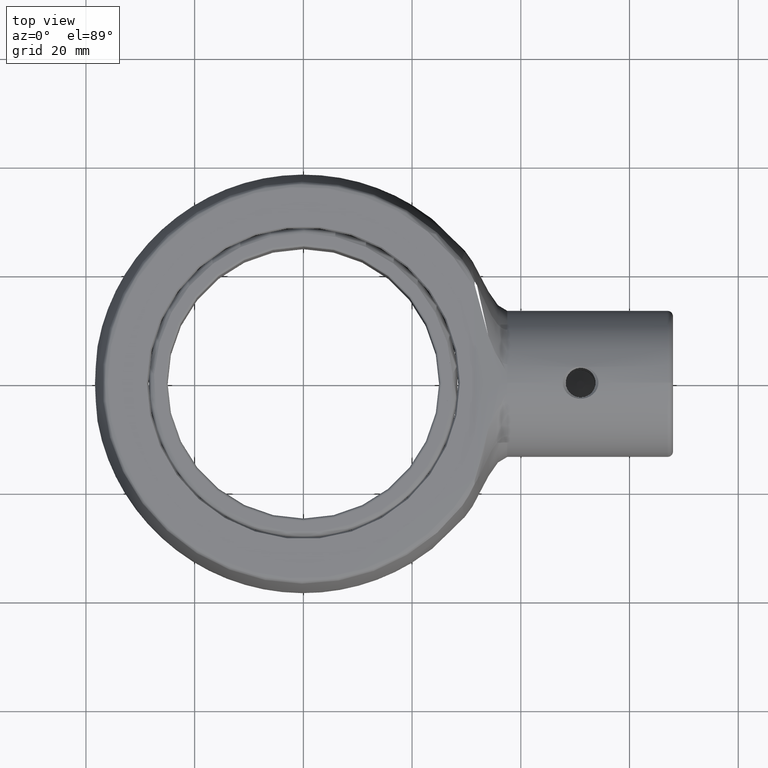
[diagram: clean part render]
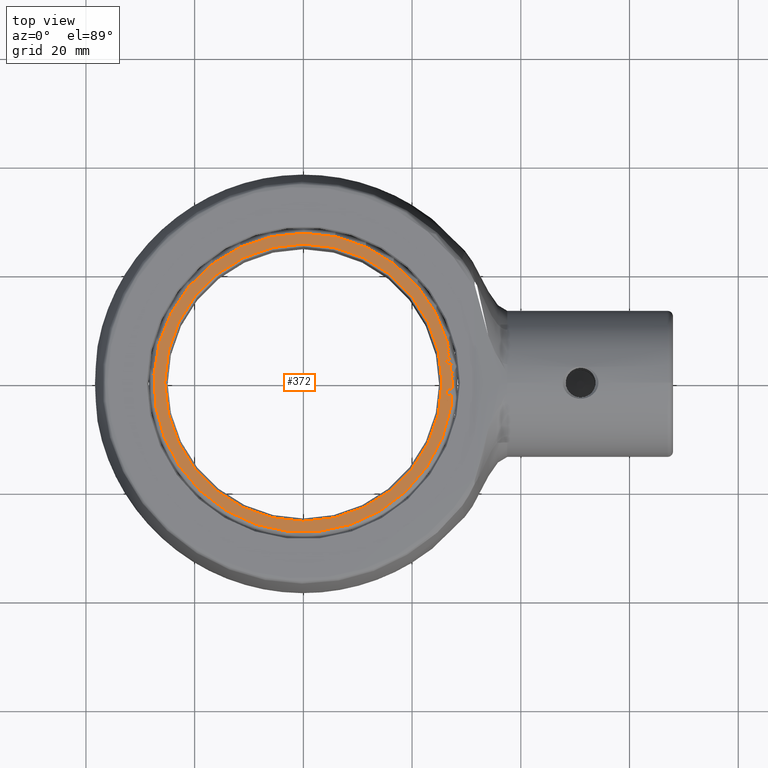
[diagram: same view with one face highlighted and labeled with its STEP entity id]
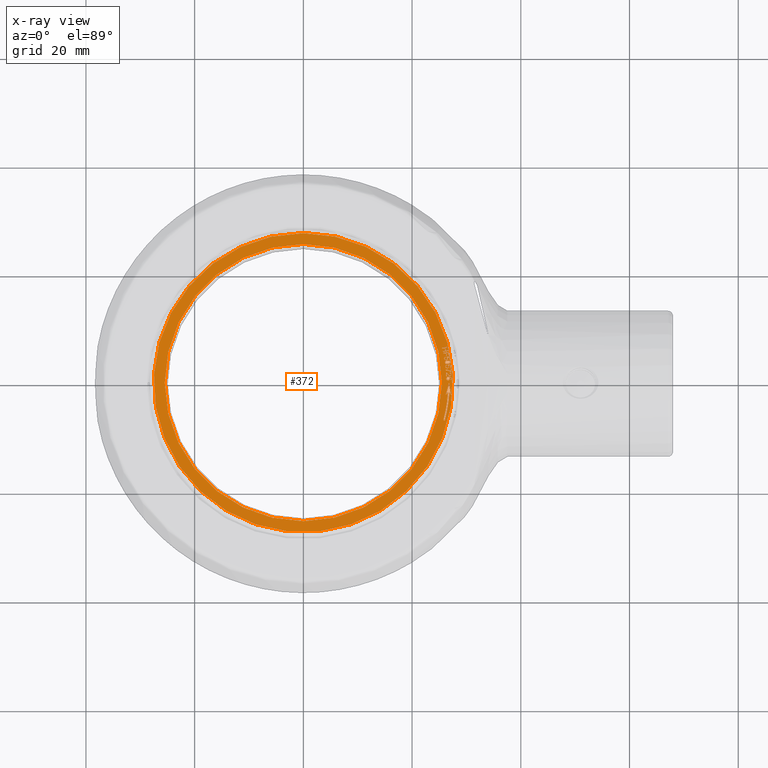
[diagram: x-ray of the same camera — body ghosted, the highlighted face saturated]
A machine part, top view. The second image highlights one B-rep face of the part: STEP entity #372.
The next image is the same camera in x-ray: the body ghosted, the highlighted face saturated — about 0% of this face is hidden behind the body in this view.
In plain terms, the highlighted planar face has unit normal (0, -0, -1).
Its self-contained STEP definition (entity closure, byte-faithful):
#372 = ADVANCED_FACE( '', ( #772, #773, #774, #775, #776, #777, #778, #779, #780, #781, #782 ), #783, .F. );
#772 = FACE_BOUND( '', #1344, .T. );
#773 = FACE_BOUND( '', #1345, .T. );
#774 = FACE_BOUND( '', #1346, .T. );
#775 = FACE_BOUND( '', #1347, .T. );
#776 = FACE_OUTER_BOUND( '', #1348, .T. );
#777 = FACE_BOUND( '', #1349, .T. );
#778 = FACE_BOUND( '', #1350, .T. );
#779 = FACE_BOUND( '', #1351, .T. );
#780 = FACE_BOUND( '', #1352, .T. );
#781 = FACE_BOUND( '', #1353, .T. );
#782 = FACE_BOUND( '', #1354, .T. );
#783 = PLANE( '', #1355 );
#1344 = EDGE_LOOP( '', ( #3769, #3770, #3771 ) );
#1345 = EDGE_LOOP( '', ( #3772, #3773, #3774, #3775, #3776, #3777, #3778 ) );
#1346 = EDGE_LOOP( '', ( #3779 ) );
#1347 = EDGE_LOOP( '', ( #3780, #3781, #3782, #3783, #3784, #3785, #3786, #3787, #3788, #3789 ) );
#1348 = EDGE_LOOP( '', ( #3790 ) );
#1349 = EDGE_LOOP( '', ( #3791 ) );
#1350 = EDGE_LOOP( '', ( #3792, #3793, #3794, #3795, #3796, #3797, #3798, #3799, #3800, #3801, #3802, #3803 ) );
#1351 = EDGE_LOOP( '', ( #3804, #3805, #3806, #3807, #3808, #3809, #3810, #3811, #3812 ) );
#1352 = EDGE_LOOP( '', ( #3813, #3814, #3815, #3816, #3817, #3818, #3819, #3820, #3821 ) );
#1353 = EDGE_LOOP( '', ( #3822, #3823, #3824, #3825, #3826, #3827 ) );
#1354 = EDGE_LOOP( '', ( #3828, #3829, #3830, #3831, #3832, #3833, #3834 ) );
#1355 = AXIS2_PLACEMENT_3D( '', #3835, #3836, #3837 );
#3769 = ORIENTED_EDGE( '', *, *, #4694, .T. );
#3770 = ORIENTED_EDGE( '', *, *, #4695, .T. );
#3771 = ORIENTED_EDGE( '', *, *, #4660, .T. );
#3772 = ORIENTED_EDGE( '', *, *, #4474, .T. );
#3773 = ORIENTED_EDGE( '', *, *, #4696, .T. );
#3774 = ORIENTED_EDGE( '', *, *, #4697, .T. );
#3775 = ORIENTED_EDGE( '', *, *, #4698, .T. );
#3776 = ORIENTED_EDGE( '', *, *, #4699, .T. );
#3777 = ORIENTED_EDGE( '', *, *, #4649, .T. );
#3778 = ORIENTED_EDGE( '', *, *, #4700, .T. );
#3779 = ORIENTED_EDGE( '', *, *, #4531, .T. );
#3780 = ORIENTED_EDGE( '', *, *, #4701, .T. );
#3781 = ORIENTED_EDGE( '', *, *, #4702, .T. );
#3782 = ORIENTED_EDGE( '', *, *, #4703, .T. );
#3783 = ORIENTED_EDGE( '', *, *, #4690, .T. );
#3784 = ORIENTED_EDGE( '', *, *, #4704, .T. );
#3785 = ORIENTED_EDGE( '', *, *, #4499, .T. );
#3786 = ORIENTED_EDGE( '', *, *, #4625, .T. );
#3787 = ORIENTED_EDGE( '', *, *, #4705, .T. );
#3788 = ORIENTED_EDGE( '', *, *, #4562, .T. );
#3789 = ORIENTED_EDGE( '', *, *, #4479, .T. );
#3790 = ORIENTED_EDGE( '', *, *, #4673, .T. );
#3791 = ORIENTED_EDGE( '', *, *, #4517, .T. );
#3792 = ORIENTED_EDGE( '', *, *, #4596, .T. );
#3793 = ORIENTED_EDGE( '', *, *, #4670, .T. );
#3794 = ORIENTED_EDGE( '', *, *, #4706, .T. );
#3795 = ORIENTED_EDGE( '', *, *, #4707, .T. );
#3796 = ORIENTED_EDGE( '', *, *, #4708, .T. );
#3797 = ORIENTED_EDGE( '', *, *, #4709, .T. );
#3798 = ORIENTED_EDGE( '', *, *, #4537, .T. );
#3799 = ORIENTED_EDGE( '', *, *, #4710, .T. );
#3800 = ORIENTED_EDGE( '', *, *, #4599, .T. );
#3801 = ORIENTED_EDGE( '', *, *, #4711, .T. );
#3802 = ORIENTED_EDGE( '', *, *, #4464, .T. );
#3803 = ORIENTED_EDGE( '', *, *, #4459, .T. );
#3804 = ORIENTED_EDGE( '', *, *, #4712, .T. );
#3805 = ORIENTED_EDGE( '', *, *, #4713, .T. );
#3806 = ORIENTED_EDGE( '', *, *, #4714, .T. );
#3807 = ORIENTED_EDGE( '', *, *, #4715, .T. );
#3808 = ORIENTED_EDGE( '', *, *, #4506, .T. );
#3809 = ORIENTED_EDGE( '', *, *, #4716, .T. );
#3810 = ORIENTED_EDGE( '', *, *, #4636, .T. );
#3811 = ORIENTED_EDGE( '', *, *, #4533, .T. );
#3812 = ORIENTED_EDGE( '', *, *, #4484, .T. );
#3813 = ORIENTED_EDGE( '', *, *, #4682, .T. );
#3814 = ORIENTED_EDGE( '', *, *, #4717, .T. );
#3815 = ORIENTED_EDGE( '', *, *, #4592, .T. );
#3816 = ORIENTED_EDGE( '', *, *, #4569, .T. );
#3817 = ORIENTED_EDGE( '', *, *, #4656, .T. );
#3818 = ORIENTED_EDGE( '', *, *, #4718, .T. );
#3819 = ORIENTED_EDGE( '', *, *, #4449, .T. );
#3820 = ORIENTED_EDGE( '', *, *, #4565, .T. );
#3821 = ORIENTED_EDGE( '', *, *, #4719, .T. );
#3822 = ORIENTED_EDGE( '', *, *, #4444, .T. );
#3823 = ORIENTED_EDGE( '', *, *, #4606, .T. );
#3824 = ORIENTED_EDGE( '', *, *, #4557, .T. );
#3825 = ORIENTED_EDGE( '', *, *, #4633, .T. );
#3826 = ORIENTED_EDGE( '', *, *, #4720, .T. );
#3827 = ORIENTED_EDGE( '', *, *, #4721, .T. );
#3828 = ORIENTED_EDGE( '', *, *, #4608, .T. );
#3829 = ORIENTED_EDGE( '', *, *, #4687, .T. );
#3830 = ORIENTED_EDGE( '', *, *, #4722, .T. );
#3831 = ORIENTED_EDGE( '', *, *, #4620, .T. );
#3832 = ORIENTED_EDGE( '', *, *, #4723, .T. );
#3833 = ORIENTED_EDGE( '', *, *, #4667, .T. );
#3834 = ORIENTED_EDGE( '', *, *, #4454, .T. );
#3835 = CARTESIAN_POINT( '', ( -25.0000000000000, 0.000000000000000, 13.0000000000000 ) );
#3836 = DIRECTION( '', ( 0.000000000000000, 0.000000000000000, -1.00000000000000 ) );
#3837 = DIRECTION( '', ( -1.00000000000000, 0.000000000000000, 0.000000000000000 ) );
#4444 = EDGE_CURVE( '', #4867, #4868, #4869, .T. );
#4449 = EDGE_CURVE( '', #4876, #4877, #4878, .T. );
#4454 = EDGE_CURVE( '', #4885, #4886, #4887, .T. );
#4459 = EDGE_CURVE( '', #4894, #4895, #4896, .T. );
#4464 = EDGE_CURVE( '', #4903, #4894, #4904, .T. );
#4474 = EDGE_CURVE( '', #4919, #4920, #4921, .T. );
#4479 = EDGE_CURVE( '', #4928, #4929, #4930, .T. );
#4484 = EDGE_CURVE( '', #4937, #4938, #4939, .T. );
#4499 = EDGE_CURVE( '', #4964, #4965, #4966, .T. );
#4506 = EDGE_CURVE( '', #4975, #4976, #4977, .T. );
#4517 = EDGE_CURVE( '', #4994, #4994, #4995, .T. );
#4531 = EDGE_CURVE( '', #5019, #5019, #5020, .T. );
#4533 = EDGE_CURVE( '', #5022, #4937, #5023, .T. );
#4537 = EDGE_CURVE( '', #5028, #5029, #5030, .T. );
#4557 = EDGE_CURVE( '', #5058, #5059, #5060, .T. );
#4562 = EDGE_CURVE( '', #5067, #4928, #5068, .T. );
#4565 = EDGE_CURVE( '', #4877, #5071, #5072, .T. );
#4569 = EDGE_CURVE( '', #5077, #5078, #5079, .T. );
#4592 = EDGE_CURVE( '', #5115, #5077, #5116, .T. );
#4596 = EDGE_CURVE( '', #4895, #5121, #5122, .T. );
#4599 = EDGE_CURVE( '', #5125, #5126, #5127, .T. );
#4606 = EDGE_CURVE( '', #4868, #5058, #5135, .T. );
#4608 = EDGE_CURVE( '', #4886, #5137, #5138, .T. );
#4620 = EDGE_CURVE( '', #5156, #5157, #5158, .T. );
#4625 = EDGE_CURVE( '', #4965, #5165, #5166, .T. );
#4633 = EDGE_CURVE( '', #5059, #5176, #5177, .T. );
#4636 = EDGE_CURVE( '', #5180, #5022, #5181, .T. );
#4649 = EDGE_CURVE( '', #5199, #5200, #5201, .T. );
#4656 = EDGE_CURVE( '', #5078, #5211, #5212, .T. );
#4660 = EDGE_CURVE( '', #5217, #5218, #5219, .T. );
#4667 = EDGE_CURVE( '', #5229, #4885, #5230, .T. );
#4670 = EDGE_CURVE( '', #5121, #5233, #5234, .T. );
#4673 = EDGE_CURVE( '', #5237, #5237, #5238, .F. );
#4682 = EDGE_CURVE( '', #5252, #5253, #5254, .T. );
#4687 = EDGE_CURVE( '', #5137, #5261, #5262, .T. );
#4690 = EDGE_CURVE( '', #5265, #5266, #5267, .T. );
#4694 = EDGE_CURVE( '', #5218, #5271, #5272, .T. );
#4695 = EDGE_CURVE( '', #5271, #5217, #5273, .T. );
#4696 = EDGE_CURVE( '', #4920, #5274, #5275, .T. );
#4697 = EDGE_CURVE( '', #5274, #5276, #5277, .T. );
#4698 = EDGE_CURVE( '', #5276, #5278, #5279, .T. );
#4699 = EDGE_CURVE( '', #5278, #5199, #5280, .T. );
#4700 = EDGE_CURVE( '', #5200, #4919, #5281, .T. );
#4701 = EDGE_CURVE( '', #4929, #5282, #5283, .T. );
#4702 = EDGE_CURVE( '', #5282, #5284, #5285, .T. );
#4703 = EDGE_CURVE( '', #5284, #5265, #5286, .T. );
#4704 = EDGE_CURVE( '', #5266, #4964, #5287, .T. );
#4705 = EDGE_CURVE( '', #5165, #5067, #5288, .T. );
#4706 = EDGE_CURVE( '', #5233, #5289, #5290, .T. );
#4707 = EDGE_CURVE( '', #5289, #5291, #5292, .T. );
#4708 = EDGE_CURVE( '', #5291, #5293, #5294, .T. );
#4709 = EDGE_CURVE( '', #5293, #5028, #5295, .T. );
#4710 = EDGE_CURVE( '', #5029, #5125, #5296, .T. );
#4711 = EDGE_CURVE( '', #5126, #4903, #5297, .T. );
#4712 = EDGE_CURVE( '', #4938, #5298, #5299, .T. );
#4713 = EDGE_CURVE( '', #5298, #5300, #5301, .T. );
#4714 = EDGE_CURVE( '', #5300, #5302, #5303, .T. );
#4715 = EDGE_CURVE( '', #5302, #4975, #5304, .T. );
#4716 = EDGE_CURVE( '', #4976, #5180, #5305, .T. );
#4717 = EDGE_CURVE( '', #5253, #5115, #5306, .T. );
#4718 = EDGE_CURVE( '', #5211, #4876, #5307, .T. );
#4719 = EDGE_CURVE( '', #5071, #5252, #5308, .T. );
#4720 = EDGE_CURVE( '', #5176, #5309, #5310, .T. );
#4721 = EDGE_CURVE( '', #5309, #4867, #5311, .T. );
#4722 = EDGE_CURVE( '', #5261, #5156, #5312, .T. );
#4723 = EDGE_CURVE( '', #5157, #5229, #5313, .T. );
#4867 = VERTEX_POINT( '', #5606 );
#4868 = VERTEX_POINT( '', #5607 );
#4869 = B_SPLINE_CURVE_WITH_KNOTS( '', 3, ( #5608, #5609, #5610, #5611 ), .UNSPECIFIED., .F., .F., ( 4, 4 ), ( 0.895332231521097, 1.00000000000000 ), .UNSPECIFIED. );
#4876 = VERTEX_POINT( '', #5623 );
#4877 = VERTEX_POINT( '', #5624 );
#4878 = B_SPLINE_CURVE_WITH_KNOTS( '', 3, ( #5625, #5626, #5627, #5628 ), .UNSPECIFIED., .F., .F., ( 4, 4 ), ( 0.497062301495594, 0.520456225598228 ), .UNSPECIFIED. );
#4885 = VERTEX_POINT( '', #5640 );
#4886 = VERTEX_POINT( '', #5641 );
#4887 = LINE( '', #5642, #5643 );
#4894 = VERTEX_POINT( '', #5653 );
#4895 = VERTEX_POINT( '', #5654 );
#4896 = B_SPLINE_CURVE_WITH_KNOTS( '', 1, ( #5655, #5656 ), .UNSPECIFIED., .F., .F., ( 2, 2 ), ( 0.886658354114713, 0.975062344139651 ), .UNSPECIFIED. );
#4903 = VERTEX_POINT( '', #5666 );
#4904 = B_SPLINE_CURVE_WITH_KNOTS( '', 1, ( #5667, #5668 ), .UNSPECIFIED., .F., .F., ( 2, 2 ), ( 0.789276807980050, 0.886658354114713 ), .UNSPECIFIED. );
#4919 = VERTEX_POINT( '', #5685 );
#4920 = VERTEX_POINT( '', #5686 );
#4921 = B_SPLINE_CURVE_WITH_KNOTS( '', 3, ( #5687, #5688, #5689, #5690 ), .UNSPECIFIED., .F., .F., ( 4, 4 ), ( 0.856757478389091, 1.00000000000000 ), .UNSPECIFIED. );
#4928 = VERTEX_POINT( '', #5702 );
#4929 = VERTEX_POINT( '', #5703 );
#4930 = B_SPLINE_CURVE_WITH_KNOTS( '', 1, ( #5704, #5705 ), .UNSPECIFIED., .F., .F., ( 2, 2 ), ( 0.863340563991323, 0.969011465757670 ), .UNSPECIFIED. );
#4937 = VERTEX_POINT( '', #5715 );
#4938 = VERTEX_POINT( '', #5716 );
#4939 = B_SPLINE_CURVE_WITH_KNOTS( '', 3, ( #5717, #5718, #5719, #5720 ), .UNSPECIFIED., .F., .F., ( 4, 4 ), ( 0.600075319561169, 0.654687335381319 ), .UNSPECIFIED. );
#4964 = VERTEX_POINT( '', #5759 );
#4965 = VERTEX_POINT( '', #5760 );
#4966 = B_SPLINE_CURVE_WITH_KNOTS( '', 1, ( #5761, #5762 ), .UNSPECIFIED., .F., .F., ( 2, 2 ), ( 0.544623489308956, 0.616516888751162 ), .UNSPECIFIED. );
#4975 = VERTEX_POINT( '', #5773 );
#4976 = VERTEX_POINT( '', #5774 );
#4977 = B_SPLINE_CURVE_WITH_KNOTS( '', 3, ( #5775, #5776, #5777, #5778 ), .UNSPECIFIED., .F., .F., ( 4, 4 ), ( 0.293581254948899, 0.398169804152642 ), .UNSPECIFIED. );
#4994 = VERTEX_POINT( '', #5861 );
#4995 = CIRCLE( '', #5862, 25.5000000000000 );
#5019 = VERTEX_POINT( '', #5928 );
#5020 = B_SPLINE_CURVE_WITH_KNOTS( '', 3, ( #5929, #5930, #5931, #5932, #5933, #5934, #5935, #5936, #5937, #5938, #5939, #5940, #5941, #5942, #5943, #5944, #5945, #5946, #5947, #5948, #5949, #5950, #5951, #5952, #5953, #5954, #5955, #5956, #5957, #5958, #5959, #5960, #5961 ), .UNSPECIFIED., .T., .F., ( 4, 3, 3, 2, 3, 2, 3, 2, 3, 3, 2, 3, 4 ), ( 0.000000000000000, 0.105584299982583, 0.179172153576167, 0.250616225579081, 0.303707691929869, 0.358405596739849, 0.413103501549828, 0.501245650391660, 0.605359866473287, 0.678761217549952, 0.750407329936788, 0.844198604334102, 1.00000000000000 ), .UNSPECIFIED. );
#5022 = VERTEX_POINT( '', #5963 );
#5023 = B_SPLINE_CURVE_WITH_KNOTS( '', 3, ( #5964, #5965, #5966, #5967 ), .UNSPECIFIED., .F., .F., ( 4, 4 ), ( 0.520456225598228, 0.600075319561169 ), .UNSPECIFIED. );
#5028 = VERTEX_POINT( '', #5976 );
#5029 = VERTEX_POINT( '', #5977 );
#5030 = B_SPLINE_CURVE_WITH_KNOTS( '', 1, ( #5978, #5979 ), .UNSPECIFIED., .F., .F., ( 2, 2 ), ( 0.463466334164588, 0.488403990024938 ), .UNSPECIFIED. );
#5058 = VERTEX_POINT( '', #6081 );
#5059 = VERTEX_POINT( '', #6082 );
#5060 = B_SPLINE_CURVE_WITH_KNOTS( '', 3, ( #6083, #6084, #6085, #6086 ), .UNSPECIFIED., .F., .F., ( 4, 4 ), ( 0.0252450715301420, 0.166362184858745 ), .UNSPECIFIED. );
#5067 = VERTEX_POINT( '', #6098 );
#5068 = B_SPLINE_CURVE_WITH_KNOTS( '', 1, ( #6099, #6100 ), .UNSPECIFIED., .F., .F., ( 2, 2 ), ( 0.753796095444685, 0.863340563991323 ), .UNSPECIFIED. );
#5071 = VERTEX_POINT( '', #6104 );
#5072 = B_SPLINE_CURVE_WITH_KNOTS( '', 3, ( #6105, #6106, #6107, #6108 ), .UNSPECIFIED., .F., .F., ( 4, 4 ), ( 0.520456225598228, 0.600075319561169 ), .UNSPECIFIED. );
#5077 = VERTEX_POINT( '', #6117 );
#5078 = VERTEX_POINT( '', #6118 );
#5079 = B_SPLINE_CURVE_WITH_KNOTS( '', 3, ( #6119, #6120, #6121, #6122 ), .UNSPECIFIED., .F., .F., ( 4, 4 ), ( 0.270365868179201, 0.293581254948899 ), .UNSPECIFIED. );
#5115 = VERTEX_POINT( '', #6324 );
#5116 = B_SPLINE_CURVE_WITH_KNOTS( '', 3, ( #6325, #6326, #6327, #6328, #6329, #6330, #6331, #6332, #6333, #6334, #6335, #6336, #6337, #6338, #6339, #6340, #6341, #6342, #6343, #6344, #6345 ), .UNSPECIFIED., .F., .F., ( 4, 3, 2, 3, 2, 2, 2, 3, 4 ), ( 0.0259861195176177, 0.0573918054660057, 0.0853913150558070, 0.118617399769038, 0.156217962131492, 0.191786061663543, 0.227354161195595, 0.249584223403127, 0.270365868179201 ), .UNSPECIFIED. );
#5121 = VERTEX_POINT( '', #6371 );
#5122 = B_SPLINE_CURVE_WITH_KNOTS( '', 1, ( #6372, #6373 ), .UNSPECIFIED., .F., .F., ( 2, 2 ), ( 0.975062344139651, 1.00000000000000 ), .UNSPECIFIED. );
#5125 = VERTEX_POINT( '', #6377 );
#5126 = VERTEX_POINT( '', #6378 );
#5127 = B_SPLINE_CURVE_WITH_KNOTS( '', 1, ( #6379, #6380 ), .UNSPECIFIED., .F., .F., ( 2, 2 ), ( 0.675935162094763, 0.700872817955112 ), .UNSPECIFIED. );
#5135 = B_SPLINE_CURVE_WITH_KNOTS( '', 3, ( #6392, #6393, #6394, #6395 ), .UNSPECIFIED., .F., .F., ( 4, 4 ), ( 0.000000000000000, 0.0252450715301420 ), .UNSPECIFIED. );
#5137 = VERTEX_POINT( '', #6397 );
#5138 = LINE( '', #6398, #6399 );
#5156 = VERTEX_POINT( '', #6627 );
#5157 = VERTEX_POINT( '', #6628 );
#5158 = CIRCLE( '', #6629, 26.9500000000000 );
#5165 = VERTEX_POINT( '', #6638 );
#5166 = B_SPLINE_CURVE_WITH_KNOTS( '', 1, ( #6639, #6640 ), .UNSPECIFIED., .F., .F., ( 2, 2 ), ( 0.616516888751162, 0.726061357297800 ), .UNSPECIFIED. );
#5176 = VERTEX_POINT( '', #6695 );
#5177 = B_SPLINE_CURVE_WITH_KNOTS( '', 3, ( #6696, #6697, #6698, #6699, #6700, #6701, #6702, #6703, #6704, #6705, #6706, #6707, #6708, #6709, #6710, #6711, #6712, #6713, #6714, #6715, #6716, #6717, #6718, #6719 ), .UNSPECIFIED., .F., .F., ( 4, 3, 2, 3, 2, 2, 3, 2, 3, 4 ), ( 0.166362184858745, 0.184903631745613, 0.225161866743363, 0.265420101741112, 0.307855039222270, 0.350289976703427, 0.394543554362349, 0.426310847707327, 0.459573072503834, 0.493858054008600 ), .UNSPECIFIED. );
#5180 = VERTEX_POINT( '', #6723 );
#5181 = B_SPLINE_CURVE_WITH_KNOTS( '', 3, ( #6724, #6725, #6726, #6727 ), .UNSPECIFIED., .F., .F., ( 4, 4 ), ( 0.497062301495594, 0.520456225598228 ), .UNSPECIFIED. );
#5199 = VERTEX_POINT( '', #6750 );
#5200 = VERTEX_POINT( '', #6751 );
#5201 = B_SPLINE_CURVE_WITH_KNOTS( '', 3, ( #6752, #6753, #6754, #6755 ), .UNSPECIFIED., .F., .F., ( 4, 4 ), ( 0.541040644475886, 0.578019012826529 ), .UNSPECIFIED. );
#5211 = VERTEX_POINT( '', #6770 );
#5212 = B_SPLINE_CURVE_WITH_KNOTS( '', 3, ( #6771, #6772, #6773, #6774 ), .UNSPECIFIED., .F., .F., ( 4, 4 ), ( 0.293581254948899, 0.398169804152642 ), .UNSPECIFIED. );
#5217 = VERTEX_POINT( '', #6783 );
#5218 = VERTEX_POINT( '', #6784 );
#5219 = B_SPLINE_CURVE_WITH_KNOTS( '', 3, ( #6785, #6786, #6787, #6788, #6789, #6790, #6791, #6792, #6793, #6794, #6795, #6796, #6797, #6798, #6799 ), .UNSPECIFIED., .F., .F., ( 4, 3, 2, 3, 3, 4 ), ( 0.0307166801766741, 0.0596365661616242, 0.0940144304891724, 0.121799279740205, 0.160596748296280, 0.219341809336946 ), .UNSPECIFIED. );
#5229 = VERTEX_POINT( '', #6846 );
#5230 = CIRCLE( '', #6847, 26.6500000000000 );
#5233 = VERTEX_POINT( '', #6851 );
#5234 = B_SPLINE_CURVE_WITH_KNOTS( '', 1, ( #6852, #6853 ), .UNSPECIFIED., .F., .F., ( 2, 2 ), ( 0.000000000000000, 0.187531172069826 ), .UNSPECIFIED. );
#5237 = VERTEX_POINT( '', #6857 );
#5238 = CIRCLE( '', #6858, 27.5000000000000 );
#5252 = VERTEX_POINT( '', #6872 );
#5253 = VERTEX_POINT( '', #6873 );
#5254 = B_SPLINE_CURVE_WITH_KNOTS( '', 3, ( #6874, #6875, #6876, #6877, #6878, #6879, #6880, #6881, #6882, #6883, #6884, #6885, #6886, #6887, #6888, #6889, #6890, #6891 ), .UNSPECIFIED., .F., .F., ( 4, 2, 2, 2, 3, 2, 3, 4 ), ( 0.654687335381319, 0.693623970125626, 0.745146183777185, 0.796668397428743, 0.846028839878139, 0.905331265922144, 0.953916386054581, 1.00000000000000 ), .UNSPECIFIED. );
#5261 = VERTEX_POINT( '', #6917 );
#5262 = LINE( '', #6918, #6919 );
#5265 = VERTEX_POINT( '', #6923 );
#5266 = VERTEX_POINT( '', #6924 );
#5267 = B_SPLINE_CURVE_WITH_KNOTS( '', 1, ( #6925, #6926 ), .UNSPECIFIED., .F., .F., ( 2, 2 ), ( 0.390455531453362, 0.418190269600248 ), .UNSPECIFIED. );
#5271 = VERTEX_POINT( '', #6932 );
#5272 = B_SPLINE_CURVE_WITH_KNOTS( '', 3, ( #6933, #6934, #6935, #6936, #6937, #6938, #6939, #6940, #6941, #6942, #6943, #6944, #6945, #6946, #6947, #6948, #6949, #6950, #6951, #6952, #6953, #6954, #6955, #6956, #6957, #6958, #6959, #6960, #6961, #6962, #6963 ), .UNSPECIFIED., .F., .F., ( 4, 2, 2, 3, 2, 2, 2, 2, 2, 2, 3, 2, 3, 4 ), ( 0.219341809336946, 0.254140841877077, 0.288939874417208, 0.350086745880580, 0.423897313425340, 0.472416148035183, 0.520934982645025, 0.569453817254867, 0.651029440280206, 0.732605063305544, 0.823593258218421, 0.894686586120569, 0.947894800085070, 1.00000000000000 ), .UNSPECIFIED. );
#5273 = B_SPLINE_CURVE_WITH_KNOTS( '', 3, ( #6964, #6965, #6966, #6967 ), .UNSPECIFIED., .F., .F., ( 4, 4 ), ( 0.000000000000000, 0.0307166801766741 ), .UNSPECIFIED. );
#5274 = VERTEX_POINT( '', #6968 );
#5275 = B_SPLINE_CURVE_WITH_KNOTS( '', 3, ( #6969, #6970, #6971, #6972 ), .UNSPECIFIED., .F., .F., ( 4, 4 ), ( 0.000000000000000, 0.0348375154461314 ), .UNSPECIFIED. );
#5276 = VERTEX_POINT( '', #6973 );
#5277 = B_SPLINE_CURVE_WITH_KNOTS( '', 3, ( #6974, #6975, #6976, #6977 ), .UNSPECIFIED., .F., .F., ( 4, 4 ), ( 0.0348375154461314, 0.224205685999683 ), .UNSPECIFIED. );
#5278 = VERTEX_POINT( '', #6978 );
#5279 = B_SPLINE_CURVE_WITH_KNOTS( '', 3, ( #6979, #6980, #6981, #6982 ), .UNSPECIFIED., .F., .F., ( 4, 4 ), ( 0.224205685999683, 0.252426019740963 ), .UNSPECIFIED. );
#5280 = B_SPLINE_CURVE_WITH_KNOTS( '', 3, ( #6983, #6984, #6985, #6986, #6987, #6988, #6989, #6990, #6991 ), .UNSPECIFIED., .F., .F., ( 4, 2, 3, 4 ), ( 0.252426019740963, 0.355890498264741, 0.459354976788519, 0.541040644475886 ), .UNSPECIFIED. );
#5281 = B_SPLINE_CURVE_WITH_KNOTS( '', 3, ( #6992, #6993, #6994, #6995, #6996, #6997, #6998, #6999, #7000, #7001 ), .UNSPECIFIED., .F., .F., ( 4, 3, 3, 4 ), ( 0.578019012826529, 0.662618183941018, 0.764294560978321, 0.856757478389091 ), .UNSPECIFIED. );
#5282 = VERTEX_POINT( '', #7002 );
#5283 = B_SPLINE_CURVE_WITH_KNOTS( '', 1, ( #7003, #7004 ), .UNSPECIFIED., .F., .F., ( 2, 2 ), ( 0.969011465757670, 1.00000000000000 ), .UNSPECIFIED. );
#5284 = VERTEX_POINT( '', #7005 );
#5285 = B_SPLINE_CURVE_WITH_KNOTS( '', 1, ( #7006, #7007 ), .UNSPECIFIED., .F., .F., ( 2, 2 ), ( 0.000000000000000, 0.233033777502324 ), .UNSPECIFIED. );
#5286 = B_SPLINE_CURVE_WITH_KNOTS( '', 1, ( #7008, #7009 ), .UNSPECIFIED., .F., .F., ( 2, 2 ), ( 0.233033777502324, 0.390455531453362 ), .UNSPECIFIED. );
#5287 = B_SPLINE_CURVE_WITH_KNOTS( '', 1, ( #7010, #7011 ), .UNSPECIFIED., .F., .F., ( 2, 2 ), ( 0.418190269600248, 0.544623489308956 ), .UNSPECIFIED. );
#5288 = B_SPLINE_CURVE_WITH_KNOTS( '', 1, ( #7012, #7013 ), .UNSPECIFIED., .F., .F., ( 2, 2 ), ( 0.726061357297800, 0.753796095444685 ), .UNSPECIFIED. );
#5289 = VERTEX_POINT( '', #7014 );
#5290 = B_SPLINE_CURVE_WITH_KNOTS( '', 1, ( #7015, #7016 ), .UNSPECIFIED., .F., .F., ( 2, 2 ), ( 0.187531172069826, 0.212468827930174 ), .UNSPECIFIED. );
#5291 = VERTEX_POINT( '', #7017 );
#5292 = B_SPLINE_CURVE_WITH_KNOTS( '', 1, ( #7018, #7019 ), .UNSPECIFIED., .F., .F., ( 2, 2 ), ( 0.212468827930174, 0.289276807980050 ), .UNSPECIFIED. );
#5293 = VERTEX_POINT( '', #7020 );
#5294 = B_SPLINE_CURVE_WITH_KNOTS( '', 1, ( #7021, #7022 ), .UNSPECIFIED., .F., .F., ( 2, 2 ), ( 0.289276807980050, 0.386658354114713 ), .UNSPECIFIED. );
#5295 = B_SPLINE_CURVE_WITH_KNOTS( '', 1, ( #7023, #7024 ), .UNSPECIFIED., .F., .F., ( 2, 2 ), ( 0.386658354114713, 0.463466334164588 ), .UNSPECIFIED. );
#5296 = B_SPLINE_CURVE_WITH_KNOTS( '', 1, ( #7025, #7026 ), .UNSPECIFIED., .F., .F., ( 2, 2 ), ( 0.488403990024938, 0.675935162094763 ), .UNSPECIFIED. );
#5297 = B_SPLINE_CURVE_WITH_KNOTS( '', 1, ( #7027, #7028 ), .UNSPECIFIED., .F., .F., ( 2, 2 ), ( 0.700872817955112, 0.789276807980050 ), .UNSPECIFIED. );
#5298 = VERTEX_POINT( '', #7029 );
#5299 = B_SPLINE_CURVE_WITH_KNOTS( '', 3, ( #7030, #7031, #7032, #7033, #7034, #7035, #7036, #7037, #7038, #7039, #7040, #7041, #7042, #7043, #7044, #7045, #7046, #7047 ), .UNSPECIFIED., .F., .F., ( 4, 2, 2, 2, 3, 2, 3, 4 ), ( 0.654687335381319, 0.693623970125627, 0.745146183777186, 0.796668397428744, 0.846028839878139, 0.905331265922144, 0.953916386054581, 1.00000000000000 ), .UNSPECIFIED. );
#5300 = VERTEX_POINT( '', #7048 );
#5301 = B_SPLINE_CURVE_WITH_KNOTS( '', 3, ( #7049, #7050, #7051, #7052 ), .UNSPECIFIED., .F., .F., ( 4, 4 ), ( 0.000000000000000, 0.0259861195176179 ), .UNSPECIFIED. );
#5302 = VERTEX_POINT( '', #7053 );
#5303 = B_SPLINE_CURVE_WITH_KNOTS( '', 3, ( #7054, #7055, #7056, #7057, #7058, #7059, #7060, #7061, #7062, #7063, #7064, #7065, #7066, #7067, #7068, #7069, #7070, #7071, #7072, #7073, #7074 ), .UNSPECIFIED., .F., .F., ( 4, 3, 2, 3, 2, 2, 2, 3, 4 ), ( 0.0259861195176179, 0.0573918054660059, 0.0853913150558069, 0.118617399769038, 0.156217962131492, 0.191786061663544, 0.227354161195595, 0.249584223403127, 0.270365868179201 ), .UNSPECIFIED. );
#5304 = B_SPLINE_CURVE_WITH_KNOTS( '', 3, ( #7075, #7076, #7077, #7078 ), .UNSPECIFIED., .F., .F., ( 4, 4 ), ( 0.270365868179201, 0.293581254948899 ), .UNSPECIFIED. );
#5305 = B_SPLINE_CURVE_WITH_KNOTS( '', 3, ( #7079, #7080, #7081, #7082 ), .UNSPECIFIED., .F., .F., ( 4, 4 ), ( 0.398169804152642, 0.497062301495594 ), .UNSPECIFIED. );
#5306 = B_SPLINE_CURVE_WITH_KNOTS( '', 3, ( #7083, #7084, #7085, #7086 ), .UNSPECIFIED., .F., .F., ( 4, 4 ), ( 0.000000000000000, 0.0259861195176177 ), .UNSPECIFIED. );
#5307 = B_SPLINE_CURVE_WITH_KNOTS( '', 3, ( #7087, #7088, #7089, #7090 ), .UNSPECIFIED., .F., .F., ( 4, 4 ), ( 0.398169804152642, 0.497062301495594 ), .UNSPECIFIED. );
#5308 = B_SPLINE_CURVE_WITH_KNOTS( '', 3, ( #7091, #7092, #7093, #7094 ), .UNSPECIFIED., .F., .F., ( 4, 4 ), ( 0.600075319561169, 0.654687335381319 ), .UNSPECIFIED. );
#5309 = VERTEX_POINT( '', #7095 );
#5310 = B_SPLINE_CURVE_WITH_KNOTS( '', 3, ( #7096, #7097, #7098, #7099 ), .UNSPECIFIED., .F., .F., ( 4, 4 ), ( 0.493858054008600, 0.520784505165992 ), .UNSPECIFIED. );
#5311 = B_SPLINE_CURVE_WITH_KNOTS( '', 3, ( #7100, #7101, #7102, #7103, #7104, #7105, #7106, #7107, #7108, #7109, #7110, #7111, #7112, #7113, #7114, #7115, #7116, #7117, #7118, #7119, #7120, #7121, #7122, #7123, #7124 ), .UNSPECIFIED., .F., .F., ( 4, 3, 2, 2, 2, 3, 3, 3, 3, 4 ), ( 0.520784505165992, 0.572525152509544, 0.622707052193058, 0.673590796627390, 0.724474541061724, 0.750347631452063, 0.781672218211085, 0.836800492435688, 0.877303282954089, 0.895332231521097 ), .UNSPECIFIED. );
#5312 = LINE( '', #7125, #7126 );
#5313 = LINE( '', #7127, #7128 );
#5606 = CARTESIAN_POINT( '', ( -1.65993104008684, 26.3811130382995, 13.0000000000000 ) );
#5607 = CARTESIAN_POINT( '', ( -1.17917596254376, 26.4061965504486, 13.0000000000000 ) );
#5608 = CARTESIAN_POINT( '', ( -1.65993104008684, 26.3811130382995, 13.0000000000000 ) );
#5609 = CARTESIAN_POINT( '', ( -1.49967934757248, 26.3894742090158, 13.0000000000000 ) );
#5610 = CARTESIAN_POINT( '', ( -1.33942765505812, 26.3978353797322, 13.0000000000000 ) );
#5611 = CARTESIAN_POINT( '', ( -1.17917596254376, 26.4061965504486, 13.0000000000000 ) );
#5623 = CARTESIAN_POINT( '', ( -2.77153049655800, 27.1437398548645, 13.0000000000000 ) );
#5624 = CARTESIAN_POINT( '', ( -2.75916162733889, 27.0296005168469, 13.0000000000000 ) );
#5625 = CARTESIAN_POINT( '', ( -2.77153049655800, 27.1437398548645, 13.0000000000000 ) );
#5626 = CARTESIAN_POINT( '', ( -2.76740754015163, 27.1056934088585, 13.0000000000000 ) );
#5627 = CARTESIAN_POINT( '', ( -2.76328458374526, 27.0676469628527, 13.0000000000000 ) );
#5628 = CARTESIAN_POINT( '', ( -2.75916162733889, 27.0296005168469, 13.0000000000000 ) );
#5640 = CARTESIAN_POINT( '', ( 1.81630052198326, 26.5880340080616, 13.0000000000000 ) );
#5641 = CARTESIAN_POINT( '', ( 2.20008671066486, 26.2078159804581, 13.0000000000000 ) );
#5642 = CARTESIAN_POINT( '', ( 2.20008671066486, 26.2078159804581, 13.0000000000000 ) );
#5643 = VECTOR( '', #7947, 1000.00000000000 );
#5653 = CARTESIAN_POINT( '', ( -6.36845766688310, 26.0123942423139, 13.0000000000000 ) );
#5654 = CARTESIAN_POINT( '', ( -6.26459801785993, 25.5617148873721, 13.0000000000000 ) );
#5655 = CARTESIAN_POINT( '', ( -6.36845766688310, 26.0123942423139, 13.0000000000000 ) );
#5656 = CARTESIAN_POINT( '', ( -6.26459801785993, 25.5617148873722, 13.0000000000000 ) );
#5666 = CARTESIAN_POINT( '', ( -5.87201115600928, 26.1268009925073, 13.0000000000000 ) );
#5667 = CARTESIAN_POINT( '', ( -5.87201115600928, 26.1268009925073, 13.0000000000000 ) );
#5668 = CARTESIAN_POINT( '', ( -6.36845766688310, 26.0123942423139, 13.0000000000000 ) );
#5685 = CARTESIAN_POINT( '', ( -2.11811037036868, 27.0849393193259, 13.0000000000000 ) );
#5686 = CARTESIAN_POINT( '', ( -2.59667782257189, 27.0465544228215, 13.0000000000000 ) );
#5687 = CARTESIAN_POINT( '', ( -2.11811037036868, 27.0849393193259, 13.0000000000000 ) );
#5688 = CARTESIAN_POINT( '', ( -2.27763285443642, 27.0721443538244, 13.0000000000000 ) );
#5689 = CARTESIAN_POINT( '', ( -2.43715533850415, 27.0593493883230, 13.0000000000000 ) );
#5690 = CARTESIAN_POINT( '', ( -2.59667782257189, 27.0465544228215, 13.0000000000000 ) );
#5702 = CARTESIAN_POINT( '', ( -5.41660590941153, 26.2081962560182, 13.0000000000000 ) );
#5703 = CARTESIAN_POINT( '', ( -5.33125665015253, 25.7715807332481, 13.0000000000000 ) );
#5704 = CARTESIAN_POINT( '', ( -5.41660590941153, 26.2081962560182, 13.0000000000000 ) );
#5705 = CARTESIAN_POINT( '', ( -5.33125665015252, 25.7715807332482, 13.0000000000000 ) );
#5715 = CARTESIAN_POINT( '', ( -4.64830726416607, 26.7698741529558, 13.0000000000000 ) );
#5716 = CARTESIAN_POINT( '', ( -4.65693611106324, 26.5020002280987, 13.0000000000000 ) );
#5717 = CARTESIAN_POINT( '', ( -4.64830726416607, 26.7698741529558, 13.0000000000000 ) );
#5718 = CARTESIAN_POINT( '', ( -4.65118354646513, 26.6805828446700, 13.0000000000000 ) );
#5719 = CARTESIAN_POINT( '', ( -4.65405982876418, 26.5912915363844, 13.0000000000000 ) );
#5720 = CARTESIAN_POINT( '', ( -4.65693611106323, 26.5020002280987, 13.0000000000000 ) );
#5759 = CARTESIAN_POINT( '', ( -5.49707449255456, 26.6198440289525, 13.0000000000000 ) );
#5760 = CARTESIAN_POINT( '', ( -5.43900696132849, 26.3227918257775, 13.0000000000000 ) );
#5761 = CARTESIAN_POINT( '', ( -5.49707449255456, 26.6198440289525, 13.0000000000000 ) );
#5762 = CARTESIAN_POINT( '', ( -5.43900696132849, 26.3227918257775, 13.0000000000000 ) );
#5773 = CARTESIAN_POINT( '', ( -4.77274533380489, 26.3545983330630, 13.0000000000000 ) );
#5774 = CARTESIAN_POINT( '', ( -4.76034480619461, 26.8677252452949, 13.0000000000000 ) );
#5775 = CARTESIAN_POINT( '', ( -4.77274533380489, 26.3545983330630, 13.0000000000000 ) );
#5776 = CARTESIAN_POINT( '', ( -4.76861182460147, 26.5256406371402, 13.0000000000000 ) );
#5777 = CARTESIAN_POINT( '', ( -4.76447831539804, 26.6966829412176, 13.0000000000000 ) );
#5778 = CARTESIAN_POINT( '', ( -4.76034480619461, 26.8677252452949, 13.0000000000000 ) );
#5861 = CARTESIAN_POINT( '', ( -25.5000000000000, 0.000000000000000, 13.0000000000000 ) );
#5862 = AXIS2_PLACEMENT_3D( '', #7991, #7992, #7993 );
#5928 = CARTESIAN_POINT( '', ( -4.05879447155725, 26.4940807294139, 13.0000000000000 ) );
#5929 = CARTESIAN_POINT( '', ( -4.05879447155725, 26.4940807294139, 13.0000000000000 ) );
#5930 = CARTESIAN_POINT( '', ( -4.07443192684811, 26.6084767716451, 13.0000000000000 ) );
#5931 = CARTESIAN_POINT( '', ( -4.07543208134773, 26.7024886825733, 13.0000000000000 ) );
#5932 = CARTESIAN_POINT( '', ( -4.06114862973276, 26.7762048094035, 13.0000000000000 ) );
#5933 = CARTESIAN_POINT( '', ( -4.04690506398270, 26.8497150874268, 13.0000000000000 ) );
#5934 = CARTESIAN_POINT( '', ( -4.01994381399855, 26.9082466799378, 13.0000000000000 ) );
#5935 = CARTESIAN_POINT( '', ( -3.97862231581504, 26.9527396927772, 13.0000000000000 ) );
#5936 = CARTESIAN_POINT( '', ( -3.93758217578421, 26.9969297526151, 13.0000000000000 ) );
#5937 = CARTESIAN_POINT( '', ( -3.88096075494856, 27.0233688503281, 13.0000000000000 ) );
#5938 = CARTESIAN_POINT( '', ( -3.75816274351401, 27.0401548192844, 13.0000000000000 ) );
#5939 = CARTESIAN_POINT( '', ( -3.71086151027636, 27.0360865856683, 13.0000000000000 ) );
#5940 = CARTESIAN_POINT( '', ( -3.66852142778655, 27.0201476895051, 13.0000000000000 ) );
#5941 = CARTESIAN_POINT( '', ( -3.62647182819115, 27.0043181454362, 13.0000000000000 ) );
#5942 = CARTESIAN_POINT( '', ( -3.58980210769822, 26.9788961087199, 13.0000000000000 ) );
#5943 = CARTESIAN_POINT( '', ( -3.52861193346369, 26.9069379412651, 13.0000000000000 ) );
#5944 = CARTESIAN_POINT( '', ( -3.50195042806268, 26.8612038053707, 13.0000000000000 ) );
#5945 = CARTESIAN_POINT( '', ( -3.47939919878799, 26.8070072279559, 13.0000000000000 ) );
#5946 = CARTESIAN_POINT( '', ( -3.45666974295444, 26.7523823249107, 13.0000000000000 ) );
#5947 = CARTESIAN_POINT( '', ( -3.43922529355762, 26.6768721363190, 13.0000000000000 ) );
#5948 = CARTESIAN_POINT( '', ( -3.41051245192186, 26.4668229062336, 13.0000000000000 ) );
#5949 = CARTESIAN_POINT( '', ( -3.40951229742224, 26.3728109953054, 13.0000000000000 ) );
#5950 = CARTESIAN_POINT( '', ( -3.42379574903720, 26.2990948684751, 13.0000000000000 ) );
#5951 = CARTESIAN_POINT( '', ( -3.43792181318530, 26.2261910099103, 13.0000000000000 ) );
#5952 = CARTESIAN_POINT( '', ( -3.46500056477141, 26.1670529979410, 13.0000000000000 ) );
#5953 = CARTESIAN_POINT( '', ( -3.50641041015995, 26.1232062904249, 13.0000000000000 ) );
#5954 = CARTESIAN_POINT( '', ( -3.54810123016624, 26.0790620736626, 13.0000000000000 ) );
#5955 = CARTESIAN_POINT( '', ( -3.60398362382141, 26.0519308275506, 13.0000000000000 ) );
#5956 = CARTESIAN_POINT( '', ( -3.76814517594969, 26.0294906374722, 13.0000000000000 ) );
#5957 = CARTESIAN_POINT( '', ( -3.84632969026711, 26.0523806275888, 13.0000000000000 ) );
#5958 = CARTESIAN_POINT( '', ( -3.90907279422271, 26.1116172578750, 13.0000000000000 ) );
#5959 = CARTESIAN_POINT( '', ( -3.98507234207612, 26.1833694797813, 13.0000000000000 ) );
#5960 = CARTESIAN_POINT( '', ( -4.03388055973791, 26.3118226282322, 13.0000000000000 ) );
#5961 = CARTESIAN_POINT( '', ( -4.05879447155725, 26.4940807294139, 13.0000000000000 ) );
#5963 = CARTESIAN_POINT( '', ( -4.26279786489213, 26.8335765664806, 13.0000000000000 ) );
#5964 = CARTESIAN_POINT( '', ( -4.26279786489213, 26.8335765664806, 13.0000000000000 ) );
#5965 = CARTESIAN_POINT( '', ( -4.39130099798344, 26.8123424286390, 13.0000000000000 ) );
#5966 = CARTESIAN_POINT( '', ( -4.51980413107476, 26.7911082907974, 13.0000000000000 ) );
#5967 = CARTESIAN_POINT( '', ( -4.64830726416607, 26.7698741529558, 13.0000000000000 ) );
#5976 = CARTESIAN_POINT( '', ( -5.98846873143018, 26.6321466725901, 13.0000000000000 ) );
#5977 = CARTESIAN_POINT( '', ( -5.86133774273009, 26.6614441758407, 13.0000000000000 ) );
#5978 = CARTESIAN_POINT( '', ( -5.98846873143018, 26.6321466725901, 13.0000000000000 ) );
#5979 = CARTESIAN_POINT( '', ( -5.86133774273009, 26.6614441758407, 13.0000000000000 ) );
#6081 = CARTESIAN_POINT( '', ( -1.17312600974899, 26.2902420737512, 13.0000000000000 ) );
#6082 = CARTESIAN_POINT( '', ( -1.82129850589447, 26.2564235173984, 13.0000000000000 ) );
#6083 = CARTESIAN_POINT( '', ( -1.17312600974899, 26.2902420737512, 13.0000000000000 ) );
#6084 = CARTESIAN_POINT( '', ( -1.38918350846415, 26.2789692216336, 13.0000000000000 ) );
#6085 = CARTESIAN_POINT( '', ( -1.60524100717931, 26.2676963695160, 13.0000000000000 ) );
#6086 = CARTESIAN_POINT( '', ( -1.82129850589447, 26.2564235173984, 13.0000000000000 ) );
#6098 = CARTESIAN_POINT( '', ( -4.96398541879798, 26.2966741538131, 13.0000000000000 ) );
#6099 = CARTESIAN_POINT( '', ( -4.96398541879798, 26.2966741538131, 13.0000000000000 ) );
#6100 = CARTESIAN_POINT( '', ( -5.41660590941153, 26.2081962560182, 13.0000000000000 ) );
#6104 = CARTESIAN_POINT( '', ( -3.14762448797834, 26.9875041949023, 13.0000000000000 ) );
#6105 = CARTESIAN_POINT( '', ( -2.75916162733889, 27.0296005168469, 13.0000000000000 ) );
#6106 = CARTESIAN_POINT( '', ( -2.88864924755204, 27.0155684095320, 13.0000000000000 ) );
#6107 = CARTESIAN_POINT( '', ( -3.01813686776519, 27.0015363022171, 13.0000000000000 ) );
#6108 = CARTESIAN_POINT( '', ( -3.14762448797834, 26.9875041949023, 13.0000000000000 ) );
#6117 = CARTESIAN_POINT( '', ( -3.18115581433645, 26.5764108747545, 13.0000000000000 ) );
#6118 = CARTESIAN_POINT( '', ( -3.29503625944045, 26.5798172937177, 13.0000000000000 ) );
#6119 = CARTESIAN_POINT( '', ( -3.18115581433645, 26.5764108747545, 13.0000000000000 ) );
#6120 = CARTESIAN_POINT( '', ( -3.21911596270445, 26.5775463477422, 13.0000000000000 ) );
#6121 = CARTESIAN_POINT( '', ( -3.25707611107245, 26.5786818207299, 13.0000000000000 ) );
#6122 = CARTESIAN_POINT( '', ( -3.29503625944045, 26.5798172937177, 13.0000000000000 ) );
#6324 = CARTESIAN_POINT( '', ( -3.16796325751160, 26.3941227876118, 13.0000000000000 ) );
#6325 = CARTESIAN_POINT( '', ( -3.16796325751160, 26.3941227876118, 13.0000000000000 ) );
#6326 = CARTESIAN_POINT( '', ( -3.15234816904782, 26.3347944110972, 13.0000000000000 ) );
#6327 = CARTESIAN_POINT( '', ( -3.12602760654829, 26.2917172464551, 13.0000000000000 ) );
#6328 = CARTESIAN_POINT( '', ( -3.08965008897899, 26.2648210160196, 13.0000000000000 ) );
#6329 = CARTESIAN_POINT( '', ( -3.05288686384295, 26.2376396072572, 13.0000000000000 ) );
#6330 = CARTESIAN_POINT( '', ( -3.01079949023272, 26.2274363423250, 13.0000000000000 ) );
#6331 = CARTESIAN_POINT( '', ( -2.90444237980722, 26.2389618795519, 13.0000000000000 ) );
#6332 = CARTESIAN_POINT( '', ( -2.85812262033513, 26.2656338303815, 13.0000000000000 ) );
#6333 = CARTESIAN_POINT( '', ( -2.82327156703176, 26.3133715387312, 13.0000000000000 ) );
#6334 = CARTESIAN_POINT( '', ( -2.78867945578095, 26.3607545576522, 13.0000000000000 ) );
#6335 = CARTESIAN_POINT( '', ( -2.77593845365571, 26.4215140063362, 13.0000000000000 ) );
#6336 = CARTESIAN_POINT( '', ( -2.79111842951552, 26.5615941029942, 13.0000000000000 ) );
#6337 = CARTESIAN_POINT( '', ( -2.81575852580926, 26.6133831248584, 13.0000000000000 ) );
#6338 = CARTESIAN_POINT( '', ( -2.89956060112047, 26.6843502294535, 13.0000000000000 ) );
#6339 = CARTESIAN_POINT( '', ( -2.95232368811573, 26.6989726594504, 13.0000000000000 ) );
#6340 = CARTESIAN_POINT( '', ( -3.05349264681315, 26.6880093435516, 13.0000000000000 ) );
#6341 = CARTESIAN_POINT( '', ( -3.08752878365338, 26.6751350840625, 13.0000000000000 ) );
#6342 = CARTESIAN_POINT( '', ( -3.11604140040732, 26.6536735027114, 13.0000000000000 ) );
#6343 = CARTESIAN_POINT( '', ( -3.14428727701120, 26.6324126979316, 13.0000000000000 ) );
#6344 = CARTESIAN_POINT( '', ( -3.16608950059297, 26.6069134839074, 13.0000000000000 ) );
#6345 = CARTESIAN_POINT( '', ( -3.18115581433645, 26.5764108747545, 13.0000000000000 ) );
#6371 = CARTESIAN_POINT( '', ( -6.39172900656001, 25.5324173841216, 13.0000000000000 ) );
#6372 = CARTESIAN_POINT( '', ( -6.26459801785993, 25.5617148873722, 13.0000000000000 ) );
#6373 = CARTESIAN_POINT( '', ( -6.39172900656001, 25.5324173841216, 13.0000000000000 ) );
#6377 = CARTESIAN_POINT( '', ( -5.64102051828603, 25.7054191408161, 13.0000000000000 ) );
#6378 = CARTESIAN_POINT( '', ( -5.76815150698611, 25.6761216375655, 13.0000000000000 ) );
#6379 = CARTESIAN_POINT( '', ( -5.64102051828603, 25.7054191408161, 13.0000000000000 ) );
#6380 = CARTESIAN_POINT( '', ( -5.76815150698611, 25.6761216375655, 13.0000000000000 ) );
#6392 = CARTESIAN_POINT( '', ( -1.17917596254376, 26.4061965504486, 13.0000000000000 ) );
#6393 = CARTESIAN_POINT( '', ( -1.17715931161217, 26.3675450582161, 13.0000000000000 ) );
#6394 = CARTESIAN_POINT( '', ( -1.17514266068058, 26.3288935659836, 13.0000000000000 ) );
#6395 = CARTESIAN_POINT( '', ( -1.17312600974899, 26.2902420737512, 13.0000000000000 ) );
#6397 = CARTESIAN_POINT( '', ( -1.66546464119843E-015, 26.8000000000000, 13.0000000000000 ) );
#6398 = CARTESIAN_POINT( '', ( 2.20008671066486, 26.2078159804581, 13.0000000000000 ) );
#6399 = VECTOR( '', #8021, 1000.00000000000 );
#6627 = CARTESIAN_POINT( '', ( 1.83674668170539, 26.8873364546815, 13.0000000000000 ) );
#6628 = CARTESIAN_POINT( '', ( 6.95941349129858, 26.0359187250447, 13.0000000000000 ) );
#6629 = AXIS2_PLACEMENT_3D( '', #8030, #8031, #8032 );
#6638 = CARTESIAN_POINT( '', ( -4.98638647071494, 26.4112697235724, 13.0000000000000 ) );
#6639 = CARTESIAN_POINT( '', ( -5.43900696132849, 26.3227918257775, 13.0000000000000 ) );
#6640 = CARTESIAN_POINT( '', ( -4.98638647071494, 26.4112697235724, 13.0000000000000 ) );
#6695 = CARTESIAN_POINT( '', ( -1.71127012033864, 26.9519466455920, 13.0000000000000 ) );
#6696 = CARTESIAN_POINT( '', ( -1.82129850589447, 26.2564235173984, 13.0000000000000 ) );
#6697 = CARTESIAN_POINT( '', ( -1.82344542948810, 26.2850524332517, 13.0000000000000 ) );
#6698 = CARTESIAN_POINT( '', ( -1.82034692742795, 26.3133018274515, 13.0000000000000 ) );
#6699 = CARTESIAN_POINT( '', ( -1.81131758157080, 26.3405542588521, 13.0000000000000 ) );
#6700 = CARTESIAN_POINT( '', ( -1.79645668606612, 26.3854075119781, 13.0000000000000 ) );
#6701 = CARTESIAN_POINT( '', ( -1.77291167238691, 26.4307405017656, 13.0000000000000 ) );
#6702 = CARTESIAN_POINT( '', ( -1.70443803406558, 26.5205359266929, 13.0000000000000 ) );
#6703 = CARTESIAN_POINT( '', ( -1.65487279992972, 26.5721122299282, 13.0000000000000 ) );
#6704 = CARTESIAN_POINT( '', ( -1.58939569817200, 26.6317039717228, 13.0000000000000 ) );
#6705 = CARTESIAN_POINT( '', ( -1.48729322013114, 26.7246290454456, 13.0000000000000 ) );
#6706 = CARTESIAN_POINT( '', ( -1.41974663348185, 26.7979773762005, 13.0000000000000 ) );
#6707 = CARTESIAN_POINT( '', ( -1.34948300055538, 26.9035430665881, 13.0000000000000 ) );
#6708 = CARTESIAN_POINT( '', ( -1.33310668978341, 26.9527345267378, 13.0000000000000 ) );
#6709 = CARTESIAN_POINT( '', ( -1.33796704511853, 27.0458889658824, 13.0000000000000 ) );
#6710 = CARTESIAN_POINT( '', ( -1.35701150280060, 27.0853939028631, 13.0000000000000 ) );
#6711 = CARTESIAN_POINT( '', ( -1.39323669889442, 27.1161639946426, 13.0000000000000 ) );
#6712 = CARTESIAN_POINT( '', ( -1.42910025712932, 27.1466269071295, 13.0000000000000 ) );
#6713 = CARTESIAN_POINT( '', ( -1.47395739363202, 27.1609425981084, 13.0000000000000 ) );
#6714 = CARTESIAN_POINT( '', ( -1.58730615175193, 27.1550285993091, 13.0000000000000 ) );
#6715 = CARTESIAN_POINT( '', ( -1.63263996703314, 27.1350268154930, 13.0000000000000 ) );
#6716 = CARTESIAN_POINT( '', ( -1.66601577739009, 27.0986656654038, 13.0000000000000 ) );
#6717 = CARTESIAN_POINT( '', ( -1.69907677661004, 27.0626474851146, 13.0000000000000 ) );
#6718 = CARTESIAN_POINT( '', ( -1.71381360958589, 27.0132150206614, 13.0000000000000 ) );
#6719 = CARTESIAN_POINT( '', ( -1.71127012033864, 26.9519466455920, 13.0000000000000 ) );
#6723 = CARTESIAN_POINT( '', ( -4.28151510158725, 26.9468481095060, 13.0000000000000 ) );
#6724 = CARTESIAN_POINT( '', ( -4.28151510158725, 26.9468481095060, 13.0000000000000 ) );
#6725 = CARTESIAN_POINT( '', ( -4.27527602268888, 26.9090909284976, 13.0000000000000 ) );
#6726 = CARTESIAN_POINT( '', ( -4.26903694379051, 26.8713337474891, 13.0000000000000 ) );
#6727 = CARTESIAN_POINT( '', ( -4.26279786489213, 26.8335765664806, 13.0000000000000 ) );
#6750 = CARTESIAN_POINT( '', ( -2.26847448600125, 26.2182186429633, 13.0000000000000 ) );
#6751 = CARTESIAN_POINT( '', ( -2.39201771415153, 26.2083094984853, 13.0000000000000 ) );
#6752 = CARTESIAN_POINT( '', ( -2.26847448600125, 26.2182186429633, 13.0000000000000 ) );
#6753 = CARTESIAN_POINT( '', ( -2.30965556205134, 26.2149155948040, 13.0000000000000 ) );
#6754 = CARTESIAN_POINT( '', ( -2.35083663810144, 26.2116125466446, 13.0000000000000 ) );
#6755 = CARTESIAN_POINT( '', ( -2.39201771415153, 26.2083094984853, 13.0000000000000 ) );
#6770 = CARTESIAN_POINT( '', ( -3.25402860726877, 27.0914532713473, 13.0000000000000 ) );
#6771 = CARTESIAN_POINT( '', ( -3.29503625944045, 26.5798172937177, 13.0000000000000 ) );
#6772 = CARTESIAN_POINT( '', ( -3.28136704204989, 26.7503626195942, 13.0000000000000 ) );
#6773 = CARTESIAN_POINT( '', ( -3.26769782465933, 26.9209079454707, 13.0000000000000 ) );
#6774 = CARTESIAN_POINT( '', ( -3.25402860726877, 27.0914532713473, 13.0000000000000 ) );
#6783 = CARTESIAN_POINT( '', ( -0.581972855321437, 27.0413907315770, 13.0000000000000 ) );
#6784 = CARTESIAN_POINT( '', ( -0.967781694777812, 26.8062774041683, 13.0000000000000 ) );
#6785 = CARTESIAN_POINT( '', ( -0.581972855321437, 27.0413907315770, 13.0000000000000 ) );
#6786 = CARTESIAN_POINT( '', ( -0.593544239588022, 27.0880909351746, 13.0000000000000 ) );
#6787 = CARTESIAN_POINT( '', ( -0.610016676476978, 27.1216222734371, 13.0000000000000 ) );
#6788 = CARTESIAN_POINT( '', ( -0.630101714296216, 27.1426684650459, 13.0000000000000 ) );
#6789 = CARTESIAN_POINT( '', ( -0.662577069563521, 27.1766979030618, 13.0000000000000 ) );
#6790 = CARTESIAN_POINT( '', ( -0.704371825025651, 27.1917648902462, 13.0000000000000 ) );
#6791 = CARTESIAN_POINT( '', ( -0.790452247555543, 27.1896796685419, 13.0000000000000 ) );
#6792 = CARTESIAN_POINT( '', ( -0.824109962891039, 27.1784242269577, 13.0000000000000 ) );
#6793 = CARTESIAN_POINT( '', ( -0.852934256054695, 27.1561932502898, 13.0000000000000 ) );
#6794 = CARTESIAN_POINT( '', ( -0.889922655374531, 27.1276656386116, 13.0000000000000 ) );
#6795 = CARTESIAN_POINT( '', ( -0.918460168655679, 27.0867452065121, 13.0000000000000 ) );
#6796 = CARTESIAN_POINT( '', ( -0.939352830837242, 27.0333860264903, 13.0000000000000 ) );
#6797 = CARTESIAN_POINT( '', ( -0.960153442932739, 26.9802619393960, 13.0000000000000 ) );
#6798 = CARTESIAN_POINT( '', ( -0.969499140483254, 26.9041118632682, 13.0000000000000 ) );
#6799 = CARTESIAN_POINT( '', ( -0.967781694777812, 26.8062774041683, 13.0000000000000 ) );
#6846 = CARTESIAN_POINT( '', ( 6.88194321124702, 25.7460940268067, 13.0000000000000 ) );
#6847 = AXIS2_PLACEMENT_3D( '', #8062, #8063, #8064 );
#6851 = CARTESIAN_POINT( '', ( -6.61204623100408, 26.4884424191462, 13.0000000000000 ) );
#6852 = CARTESIAN_POINT( '', ( -6.39172900656001, 25.5324173841216, 13.0000000000000 ) );
#6853 = CARTESIAN_POINT( '', ( -6.61204623100408, 26.4884424191462, 13.0000000000000 ) );
#6857 = CARTESIAN_POINT( '', ( -27.5000000000000, 0.000000000000000, 13.0000000000000 ) );
#6858 = AXIS2_PLACEMENT_3D( '', #8067, #8068, #8069 );
#6872 = CARTESIAN_POINT( '', ( -3.17118410585394, 26.7205288383192, 13.0000000000000 ) );
#6873 = CARTESIAN_POINT( '', ( -3.29344056855912, 26.3713393772142, 13.0000000000000 ) );
#6874 = CARTESIAN_POINT( '', ( -3.17118410585394, 26.7205288383192, 13.0000000000000 ) );
#6875 = CARTESIAN_POINT( '', ( -3.11717461420622, 26.7670620041534, 13.0000000000000 ) );
#6876 = CARTESIAN_POINT( '', ( -3.05781419774793, 26.7944909893373, 13.0000000000000 ) );
#6877 = CARTESIAN_POINT( '', ( -2.90865483556583, 26.8106548525213, 13.0000000000000 ) );
#6878 = CARTESIAN_POINT( '', ( -2.83343645770201, 26.7886238010129, 13.0000000000000 ) );
#6879 = CARTESIAN_POINT( '', ( -2.70391250860515, 26.6832433290825, 13.0000000000000 ) );
#6880 = CARTESIAN_POINT( '', ( -2.66650666821068, 26.6105291050302, 13.0000000000000 ) );
#6881 = CARTESIAN_POINT( '', ( -2.64682892172574, 26.4289437945476, 13.0000000000000 ) );
#6882 = CARTESIAN_POINT( '', ( -2.66454719344203, 26.3502559688839, 13.0000000000000 ) );
#6883 = CARTESIAN_POINT( '', ( -2.70882270282100, 26.2805006556335, 13.0000000000000 ) );
#6884 = CARTESIAN_POINT( '', ( -2.76308931954019, 26.1950045224128, 13.0000000000000 ) );
#6885 = CARTESIAN_POINT( '', ( -2.84382421418984, 26.1457983770018, 13.0000000000000 ) );
#6886 = CARTESIAN_POINT( '', ( -3.03967694192459, 26.1245745218645, 13.0000000000000 ) );
#6887 = CARTESIAN_POINT( '', ( -3.11498161742628, 26.1413471439789, 13.0000000000000 ) );
#6888 = CARTESIAN_POINT( '', ( -3.17609535112040, 26.1845907061181, 13.0000000000000 ) );
#6889 = CARTESIAN_POINT( '', ( -3.23796071136012, 26.2283661128569, 13.0000000000000 ) );
#6890 = CARTESIAN_POINT( '', ( -3.27680335504879, 26.2904693194893, 13.0000000000000 ) );
#6891 = CARTESIAN_POINT( '', ( -3.29344056855912, 26.3713393772142, 13.0000000000000 ) );
#6917 = CARTESIAN_POINT( '', ( 2.28374019776239, 27.2043108846581, 13.0000000000000 ) );
#6918 = CARTESIAN_POINT( '', ( -1.66546464119843E-015, 26.8000000000000, 13.0000000000000 ) );
#6919 = VECTOR( '', #8087, 1000.00000000000 );
#6923 = CARTESIAN_POINT( '', ( -4.99707339406040, 26.8365583605231, 13.0000000000000 ) );
#6924 = CARTESIAN_POINT( '', ( -4.97467234214344, 26.7219627907638, 13.0000000000000 ) );
#6925 = CARTESIAN_POINT( '', ( -4.99707339406040, 26.8365583605231, 13.0000000000000 ) );
#6926 = CARTESIAN_POINT( '', ( -4.97467234214344, 26.7219627907638, 13.0000000000000 ) );
#6932 = CARTESIAN_POINT( '', ( -0.462203123187801, 27.0534271460392, 13.0000000000000 ) );
#6933 = CARTESIAN_POINT( '', ( -0.967781694777812, 26.8062774041683, 13.0000000000000 ) );
#6934 = CARTESIAN_POINT( '', ( -0.940146628587465, 26.8506648137479, 13.0000000000000 ) );
#6935 = CARTESIAN_POINT( '', ( -0.905069642572857, 26.8841398767799, 13.0000000000000 ) );
#6936 = CARTESIAN_POINT( '', ( -0.822640328547544, 26.9292021212127, 13.0000000000000 ) );
#6937 = CARTESIAN_POINT( '', ( -0.779216544149594, 26.9413466442217, 13.0000000000000 ) );
#6938 = CARTESIAN_POINT( '', ( -0.653356532420280, 26.9443954911076, 13.0000000000000 ) );
#6939 = CARTESIAN_POINT( '', ( -0.584156800874540, 26.9160564671877, 13.0000000000000 ) );
#6940 = CARTESIAN_POINT( '', ( -0.526652359276360, 26.8587238235429, 13.0000000000000 ) );
#6941 = CARTESIAN_POINT( '', ( -0.468494795471077, 26.8007400089326, 13.0000000000000 ) );
#6942 = CARTESIAN_POINT( '', ( -0.438590381674960, 26.7251355730531, 13.0000000000000 ) );
#6943 = CARTESIAN_POINT( '', ( -0.434846460887656, 26.5705820871471, 13.0000000000000 ) );
#6944 = CARTESIAN_POINT( '', ( -0.446498801346882, 26.5128791961114, 13.0000000000000 ) );
#6945 = CARTESIAN_POINT( '', ( -0.497413867493483, 26.4059396761903, 13.0000000000000 ) );
#6946 = CARTESIAN_POINT( '', ( -0.532953412311713, 26.3646233230668, 13.0000000000000 ) );
#6947 = CARTESIAN_POINT( '', ( -0.624196525438025, 26.3062974304942, 13.0000000000000 ) );
#6948 = CARTESIAN_POINT( '', ( -0.676034738669849, 26.2913390470891, 13.0000000000000 ) );
#6949 = CARTESIAN_POINT( '', ( -0.835153095467531, 26.2874845463629, 13.0000000000000 ) );
#6950 = CARTESIAN_POINT( '', ( -0.918205411029718, 26.3220130745972, 13.0000000000000 ) );
#6951 = CARTESIAN_POINT( '', ( -1.04828769948408, 26.4663285479390, 13.0000000000000 ) );
#6952 = CARTESIAN_POINT( '', ( -1.08252793826013, 26.5868654263387, 13.0000000000000 ) );
#6953 = CARTESIAN_POINT( '', ( -1.09121636202813, 26.9455338535466, 13.0000000000000 ) );
#6954 = CARTESIAN_POINT( '', ( -1.05933483902054, 27.0839851499545, 13.0000000000000 ) );
#6955 = CARTESIAN_POINT( '', ( -0.991642748522595, 27.1717558658355, 13.0000000000000 ) );
#6956 = CARTESIAN_POINT( '', ( -0.932472832684716, 27.2484765851029, 13.0000000000000 ) );
#6957 = CARTESIAN_POINT( '', ( -0.850892484708704, 27.2873966343968, 13.0000000000000 ) );
#6958 = CARTESIAN_POINT( '', ( -0.669601897865443, 27.2917882376832, 13.0000000000000 ) );
#6959 = CARTESIAN_POINT( '', ( -0.605824524368152, 27.2718004540607, 13.0000000000000 ) );
#6960 = CARTESIAN_POINT( '', ( -0.555220458119993, 27.2299608249892, 13.0000000000000 ) );
#6961 = CARTESIAN_POINT( '', ( -0.504666336666788, 27.1881624904588, 13.0000000000000 ) );
#6962 = CARTESIAN_POINT( '', ( -0.473817456942723, 27.1288366209475, 13.0000000000000 ) );
#6963 = CARTESIAN_POINT( '', ( -0.462203123187801, 27.0534271460392, 13.0000000000000 ) );
#6964 = CARTESIAN_POINT( '', ( -0.462203123187801, 27.0534271460392, 13.0000000000000 ) );
#6965 = CARTESIAN_POINT( '', ( -0.502126367232346, 27.0494150078851, 13.0000000000000 ) );
#6966 = CARTESIAN_POINT( '', ( -0.542049611276891, 27.0454028697310, 13.0000000000000 ) );
#6967 = CARTESIAN_POINT( '', ( -0.581972855321437, 27.0413907315770, 13.0000000000000 ) );
#6968 = CARTESIAN_POINT( '', ( -2.60601327973803, 27.1629451482894, 13.0000000000000 ) );
#6969 = CARTESIAN_POINT( '', ( -2.59667782257189, 27.0465544228215, 13.0000000000000 ) );
#6970 = CARTESIAN_POINT( '', ( -2.59978964162727, 27.0853513313108, 13.0000000000000 ) );
#6971 = CARTESIAN_POINT( '', ( -2.60290146068264, 27.1241482398001, 13.0000000000000 ) );
#6972 = CARTESIAN_POINT( '', ( -2.60601327973803, 27.1629451482894, 13.0000000000000 ) );
#6973 = CARTESIAN_POINT( '', ( -1.97334190610526, 27.2136903986953, 13.0000000000000 ) );
#6974 = CARTESIAN_POINT( '', ( -2.60601327973803, 27.1629451482894, 13.0000000000000 ) );
#6975 = CARTESIAN_POINT( '', ( -2.39512282186044, 27.1798602317580, 13.0000000000000 ) );
#6976 = CARTESIAN_POINT( '', ( -2.18423236398284, 27.1967753152267, 13.0000000000000 ) );
#6977 = CARTESIAN_POINT( '', ( -1.97334190610526, 27.2136903986953, 13.0000000000000 ) );
#6978 = CARTESIAN_POINT( '', ( -1.96577966426676, 27.1194074087911, 13.0000000000000 ) );
#6979 = CARTESIAN_POINT( '', ( -1.97334190610526, 27.2136903986953, 13.0000000000000 ) );
#6980 = CARTESIAN_POINT( '', ( -1.97082115882576, 27.1822627353940, 13.0000000000000 ) );
#6981 = CARTESIAN_POINT( '', ( -1.96830041154626, 27.1508350720926, 13.0000000000000 ) );
#6982 = CARTESIAN_POINT( '', ( -1.96577966426676, 27.1194074087911, 13.0000000000000 ) );
#6983 = CARTESIAN_POINT( '', ( -1.96577966426676, 27.1194074087911, 13.0000000000000 ) );
#6984 = CARTESIAN_POINT( '', ( -2.02288185987554, 27.0480774764689, 13.0000000000000 ) );
#6985 = CARTESIAN_POINT( '', ( -2.07761276603209, 26.9553421894916, 13.0000000000000 ) );
#6986 = CARTESIAN_POINT( '', ( -2.18222769265671, 26.7257604511934, 13.0000000000000 ) );
#6987 = CARTESIAN_POINT( '', ( -2.21996938364431, 26.6088658190851, 13.0000000000000 ) );
#6988 = CARTESIAN_POINT( '', ( -2.24449791073234, 26.4904133447503, 13.0000000000000 ) );
#6989 = CARTESIAN_POINT( '', ( -2.26186788548073, 26.4065307503860, 13.0000000000000 ) );
#6990 = CARTESIAN_POINT( '', ( -2.26974306624190, 26.3156240768537, 13.0000000000000 ) );
#6991 = CARTESIAN_POINT( '', ( -2.26847448600125, 26.2182186429633, 13.0000000000000 ) );
#6992 = CARTESIAN_POINT( '', ( -2.39201771415153, 26.2083094984853, 13.0000000000000 ) );
#6993 = CARTESIAN_POINT( '', ( -2.39687135937315, 26.2851406522258, 13.0000000000000 ) );
#6994 = CARTESIAN_POINT( '', ( -2.38872383402974, 26.3793748685045, 13.0000000000000 ) );
#6995 = CARTESIAN_POINT( '', ( -2.36882343976247, 26.4902576130210, 13.0000000000000 ) );
#6996 = CARTESIAN_POINT( '', ( -2.34881161663207, 26.6017612265512, 13.0000000000000 ) );
#6997 = CARTESIAN_POINT( '', ( -2.31575733393636, 26.7098150323109, 13.0000000000000 ) );
#6998 = CARTESIAN_POINT( '', ( -2.26992437921057, 26.8155792564325, 13.0000000000000 ) );
#6999 = CARTESIAN_POINT( '', ( -2.22432040577980, 26.9208150828292, 13.0000000000000 ) );
#7000 = CARTESIAN_POINT( '', ( -2.17370349737634, 27.0111127837213, 13.0000000000000 ) );
#7001 = CARTESIAN_POINT( '', ( -2.11811037036868, 27.0849393193259, 13.0000000000000 ) );
#7002 = CARTESIAN_POINT( '', ( -5.45929639290035, 25.7465516249611, 13.0000000000000 ) );
#7003 = CARTESIAN_POINT( '', ( -5.33125665015252, 25.7715807332482, 13.0000000000000 ) );
#7004 = CARTESIAN_POINT( '', ( -5.45929639290035, 25.7465516249611, 13.0000000000000 ) );
#7005 = CARTESIAN_POINT( '', ( -5.64751528721934, 26.7094104904247, 13.0000000000000 ) );
#7006 = CARTESIAN_POINT( '', ( -5.45929639290035, 25.7465516249611, 13.0000000000000 ) );
#7007 = CARTESIAN_POINT( '', ( -5.64751528721934, 26.7094104904247, 13.0000000000000 ) );
#7008 = CARTESIAN_POINT( '', ( -5.64751528721934, 26.7094104904247, 13.0000000000000 ) );
#7009 = CARTESIAN_POINT( '', ( -4.99707339406040, 26.8365583605231, 13.0000000000000 ) );
#7010 = CARTESIAN_POINT( '', ( -4.97467234214344, 26.7219627907638, 13.0000000000000 ) );
#7011 = CARTESIAN_POINT( '', ( -5.49707449255456, 26.6198440289525, 13.0000000000000 ) );
#7012 = CARTESIAN_POINT( '', ( -4.98638647071494, 26.4112697235724, 13.0000000000000 ) );
#7013 = CARTESIAN_POINT( '', ( -4.96398541879798, 26.2966741538131, 13.0000000000000 ) );
#7014 = CARTESIAN_POINT( '', ( -6.48491524230400, 26.5177399223968, 13.0000000000000 ) );
#7015 = CARTESIAN_POINT( '', ( -6.61204623100408, 26.4884424191462, 13.0000000000000 ) );
#7016 = CARTESIAN_POINT( '', ( -6.48491524230400, 26.5177399223968, 13.0000000000000 ) );
#7017 = CARTESIAN_POINT( '', ( -6.39467893229233, 26.1261764772005, 13.0000000000000 ) );
#7018 = CARTESIAN_POINT( '', ( -6.48491524230400, 26.5177399223968, 13.0000000000000 ) );
#7019 = CARTESIAN_POINT( '', ( -6.39467893229233, 26.1261764772005, 13.0000000000000 ) );
#7020 = CARTESIAN_POINT( '', ( -5.89823242141851, 26.2405832273939, 13.0000000000000 ) );
#7021 = CARTESIAN_POINT( '', ( -6.39467893229233, 26.1261764772005, 13.0000000000000 ) );
#7022 = CARTESIAN_POINT( '', ( -5.89823242141851, 26.2405832273939, 13.0000000000000 ) );
#7023 = CARTESIAN_POINT( '', ( -5.89823242141851, 26.2405832273939, 13.0000000000000 ) );
#7024 = CARTESIAN_POINT( '', ( -5.98846873143018, 26.6321466725901, 13.0000000000000 ) );
#7025 = CARTESIAN_POINT( '', ( -5.86133774273009, 26.6614441758407, 13.0000000000000 ) );
#7026 = CARTESIAN_POINT( '', ( -5.64102051828603, 25.7054191408161, 13.0000000000000 ) );
#7027 = CARTESIAN_POINT( '', ( -5.76815150698611, 25.6761216375655, 13.0000000000000 ) );
#7028 = CARTESIAN_POINT( '', ( -5.87201115600928, 26.1268009925073, 13.0000000000000 ) );
#7029 = CARTESIAN_POINT( '', ( -4.75952151623538, 26.1465341156975, 13.0000000000000 ) );
#7030 = CARTESIAN_POINT( '', ( -4.65693611106323, 26.5020002280987, 13.0000000000000 ) );
#7031 = CARTESIAN_POINT( '', ( -4.60560673494284, 26.5514740177017, 13.0000000000000 ) );
#7032 = CARTESIAN_POINT( '', ( -4.54786897918620, 26.5821718976043, 13.0000000000000 ) );
#7033 = CARTESIAN_POINT( '', ( -4.39984366727801, 26.6066319228309, 13.0000000000000 ) );
#7034 = CARTESIAN_POINT( '', ( -4.32351335952918, 26.5888314813194, 13.0000000000000 ) );
#7035 = CARTESIAN_POINT( '', ( -4.18831213894348, 26.4908410368564, 13.0000000000000 ) );
#7036 = CARTESIAN_POINT( '', ( -4.14690795638966, 26.4203268613865, 13.0000000000000 ) );
#7037 = CARTESIAN_POINT( '', ( -4.11713053437471, 26.2401221338461, 13.0000000000000 ) );
#7038 = CARTESIAN_POINT( '', ( -4.13043135839566, 26.1605683838360, 13.0000000000000 ) );
#7039 = CARTESIAN_POINT( '', ( -4.17074638945356, 26.0884516539586, 13.0000000000000 ) );
#7040 = CARTESIAN_POINT( '', ( -4.22015881562613, 26.0000612323871, 13.0000000000000 ) );
#7041 = CARTESIAN_POINT( '', ( -4.29802285249097, 25.9464276633896, 13.0000000000000 ) );
#7042 = CARTESIAN_POINT( '', ( -4.49238652290955, 25.9143105867878, 13.0000000000000 ) );
#7043 = CARTESIAN_POINT( '', ( -4.56850963548489, 25.9268559738623, 13.0000000000000 ) );
#7044 = CARTESIAN_POINT( '', ( -4.63194067349064, 25.9666227631473, 13.0000000000000 ) );
#7045 = CARTESIAN_POINT( '', ( -4.69615183814056, 26.0068786368434, 13.0000000000000 ) );
#7046 = CARTESIAN_POINT( '', ( -4.73839861657692, 26.0667181635335, 13.0000000000000 ) );
#7047 = CARTESIAN_POINT( '', ( -4.75952151623538, 26.1465341156975, 13.0000000000000 ) );
#7048 = CARTESIAN_POINT( '', ( -4.63551066637049, 26.1762821995492, 13.0000000000000 ) );
#7049 = CARTESIAN_POINT( '', ( -4.75952151623538, 26.1465341156975, 13.0000000000000 ) );
#7050 = CARTESIAN_POINT( '', ( -4.71818456628042, 26.1564501436481, 13.0000000000000 ) );
#7051 = CARTESIAN_POINT( '', ( -4.67684761632545, 26.1663661715987, 13.0000000000000 ) );
#7052 = CARTESIAN_POINT( '', ( -4.63551066637049, 26.1762821995492, 13.0000000000000 ) );
#7053 = CARTESIAN_POINT( '', ( -4.65885220525900, 26.3575504064473, 13.0000000000000 ) );
#7054 = CARTESIAN_POINT( '', ( -4.63551066637049, 26.1762821995492, 13.0000000000000 ) );
#7055 = CARTESIAN_POINT( '', ( -4.61661007196707, 26.1179173575741, 13.0000000000000 ) );
#7056 = CARTESIAN_POINT( '', ( -4.58792730214607, 26.0763756575693, 13.0000000000000 ) );
#7057 = CARTESIAN_POINT( '', ( -4.55010594522013, 26.0515507515991, 13.0000000000000 ) );
#7058 = CARTESIAN_POINT( '', ( -4.51188357182782, 26.0264626293703, 13.0000000000000 ) );
#7059 = CARTESIAN_POINT( '', ( -4.46929252207494, 26.0186232343915, 13.0000000000000 ) );
#7060 = CARTESIAN_POINT( '', ( -4.36374403880127, 26.0360642958575, 13.0000000000000 ) );
#7061 = CARTESIAN_POINT( '', ( -4.31898439723328, 26.0652788053573, 13.0000000000000 ) );
#7062 = CARTESIAN_POINT( '', ( -4.28685082185842, 26.1148864463863, 13.0000000000000 ) );
#7063 = CARTESIAN_POINT( '', ( -4.25495599777440, 26.1641255044552, 13.0000000000000 ) );
#7064 = CARTESIAN_POINT( '', ( -4.24562449963596, 26.2255011256905, 13.0000000000000 ) );
#7065 = CARTESIAN_POINT( '', ( -4.26859565376179, 26.3645162012217, 13.0000000000000 ) );
#7066 = CARTESIAN_POINT( '', ( -4.29608659349719, 26.4148499410339, 13.0000000000000 ) );
#7067 = CARTESIAN_POINT( '', ( -4.38371728592759, 26.4810313546274, 13.0000000000000 ) );
#7068 = CARTESIAN_POINT( '', ( -4.43721396032264, 26.4926874533295, 13.0000000000000 ) );
#7069 = CARTESIAN_POINT( '', ( -4.53761373709515, 26.4760971753498, 13.0000000000000 ) );
#7070 = CARTESIAN_POINT( '', ( -4.57087863487720, 26.4613441504413, 13.0000000000000 ) );
#7071 = CARTESIAN_POINT( '', ( -4.59814954336998, 26.4383253247062, 13.0000000000000 ) );
#7072 = CARTESIAN_POINT( '', ( -4.62516532809471, 26.4155218438159, 13.0000000000000 ) );
#7073 = CARTESIAN_POINT( '', ( -4.64551104167874, 26.3888460344051, 13.0000000000000 ) );
#7074 = CARTESIAN_POINT( '', ( -4.65885220525900, 26.3575504064473, 13.0000000000000 ) );
#7075 = CARTESIAN_POINT( '', ( -4.65885220525900, 26.3575504064473, 13.0000000000000 ) );
#7076 = CARTESIAN_POINT( '', ( -4.69681658144097, 26.3565663819858, 13.0000000000000 ) );
#7077 = CARTESIAN_POINT( '', ( -4.73478095762293, 26.3555823575244, 13.0000000000000 ) );
#7078 = CARTESIAN_POINT( '', ( -4.77274533380489, 26.3545983330630, 13.0000000000000 ) );
#7079 = CARTESIAN_POINT( '', ( -4.76034480619461, 26.8677252452949, 13.0000000000000 ) );
#7080 = CARTESIAN_POINT( '', ( -4.60073490465883, 26.8940995333653, 13.0000000000000 ) );
#7081 = CARTESIAN_POINT( '', ( -4.44112500312303, 26.9204738214356, 13.0000000000000 ) );
#7082 = CARTESIAN_POINT( '', ( -4.28151510158725, 26.9468481095060, 13.0000000000000 ) );
#7083 = CARTESIAN_POINT( '', ( -3.29344056855912, 26.3713393772142, 13.0000000000000 ) );
#7084 = CARTESIAN_POINT( '', ( -3.25161479820995, 26.3789338473468, 13.0000000000000 ) );
#7085 = CARTESIAN_POINT( '', ( -3.20978902786077, 26.3865283174793, 13.0000000000000 ) );
#7086 = CARTESIAN_POINT( '', ( -3.16796325751160, 26.3941227876118, 13.0000000000000 ) );
#7087 = CARTESIAN_POINT( '', ( -3.25402860726877, 27.0914532713473, 13.0000000000000 ) );
#7088 = CARTESIAN_POINT( '', ( -3.09319590369851, 27.1088821325197, 13.0000000000000 ) );
#7089 = CARTESIAN_POINT( '', ( -2.93236320012825, 27.1263109936920, 13.0000000000000 ) );
#7090 = CARTESIAN_POINT( '', ( -2.77153049655800, 27.1437398548645, 13.0000000000000 ) );
#7091 = CARTESIAN_POINT( '', ( -3.14762448797834, 26.9875041949023, 13.0000000000000 ) );
#7092 = CARTESIAN_POINT( '', ( -3.15547769393688, 26.8985124093746, 13.0000000000000 ) );
#7093 = CARTESIAN_POINT( '', ( -3.16333089989541, 26.8095206238469, 13.0000000000000 ) );
#7094 = CARTESIAN_POINT( '', ( -3.17118410585394, 26.7205288383192, 13.0000000000000 ) );
#7095 = CARTESIAN_POINT( '', ( -1.83500211610332, 26.9572485529085, 13.0000000000000 ) );
#7096 = CARTESIAN_POINT( '', ( -1.71127012033864, 26.9519466455920, 13.0000000000000 ) );
#7097 = CARTESIAN_POINT( '', ( -1.75251411892687, 26.9537139480308, 13.0000000000000 ) );
#7098 = CARTESIAN_POINT( '', ( -1.79375811751509, 26.9554812504697, 13.0000000000000 ) );
#7099 = CARTESIAN_POINT( '', ( -1.83500211610332, 26.9572485529085, 13.0000000000000 ) );
#7100 = CARTESIAN_POINT( '', ( -1.83500211610332, 26.9572485529085, 13.0000000000000 ) );
#7101 = CARTESIAN_POINT( '', ( -1.83135989756281, 27.0501934128937, 13.0000000000000 ) );
#7102 = CARTESIAN_POINT( '', ( -1.80307661436545, 27.1215618212846, 13.0000000000000 ) );
#7103 = CARTESIAN_POINT( '', ( -1.75025423200776, 27.1733080670141, 13.0000000000000 ) );
#7104 = CARTESIAN_POINT( '', ( -1.69808956024751, 27.2244100015128, 13.0000000000000 ) );
#7105 = CARTESIAN_POINT( '', ( -1.62504388579505, 27.2523464803106, 13.0000000000000 ) );
#7106 = CARTESIAN_POINT( '', ( -1.43743214821726, 27.2621351679785, 13.0000000000000 ) );
#7107 = CARTESIAN_POINT( '', ( -1.36180962880550, 27.2399526710723, 13.0000000000000 ) );
#7108 = CARTESIAN_POINT( '', ( -1.24693128873627, 27.1414339957799, 13.0000000000000 ) );
#7109 = CARTESIAN_POINT( '', ( -1.21620638228699, 27.0783699779391, 13.0000000000000 ) );
#7110 = CARTESIAN_POINT( '', ( -1.21015642949222, 26.9624155012417, 13.0000000000000 ) );
#7111 = CARTESIAN_POINT( '', ( -1.21596826379265, 26.9235732902379, 13.0000000000000 ) );
#7112 = CARTESIAN_POINT( '', ( -1.23028267196871, 26.8849406583934, 13.0000000000000 ) );
#7113 = CARTESIAN_POINT( '', ( -1.24450736838633, 26.8465501463274, 13.0000000000000 ) );
#7114 = CARTESIAN_POINT( '', ( -1.26858096748979, 26.8052112782887, 13.0000000000000 ) );
#7115 = CARTESIAN_POINT( '', ( -1.30353719329252, 26.7615824366149, 13.0000000000000 ) );
#7116 = CARTESIAN_POINT( '', ( -1.33879800703961, 26.7175734389347, 13.0000000000000 ) );
#7117 = CARTESIAN_POINT( '', ( -1.39735425891275, 26.6567474492019, 13.0000000000000 ) );
#7118 = CARTESIAN_POINT( '', ( -1.47953626009837, 26.5793008471850, 13.0000000000000 ) );
#7119 = CARTESIAN_POINT( '', ( -1.54828086787070, 26.5145173641577, 13.0000000000000 ) );
#7120 = CARTESIAN_POINT( '', ( -1.59279424955309, 26.4714919158735, 13.0000000000000 ) );
#7121 = CARTESIAN_POINT( '', ( -1.61251837771089, 26.4489071056463, 13.0000000000000 ) );
#7122 = CARTESIAN_POINT( '', ( -1.63194379687624, 26.4266643275664, 13.0000000000000 ) );
#7123 = CARTESIAN_POINT( '', ( -1.64805805616029, 26.4039414161849, 13.0000000000000 ) );
#7124 = CARTESIAN_POINT( '', ( -1.65993104008684, 26.3811130382995, 13.0000000000000 ) );
#7125 = CARTESIAN_POINT( '', ( 2.28374019776239, 27.2043108846581, 13.0000000000000 ) );
#7126 = VECTOR( '', #8091, 1000.00000000000 );
#7127 = CARTESIAN_POINT( '', ( 6.88194321124702, 25.7460940268067, 13.0000000000000 ) );
#7128 = VECTOR( '', #8092, 1000.00000000000 );
#7947 = DIRECTION( '', ( 0.710401464146304, -0.703796674998389, 0.000000000000000 ) );
#7991 = CARTESIAN_POINT( '', ( 0.000000000000000, 0.000000000000000, 13.0000000000000 ) );
#7992 = DIRECTION( '', ( 0.000000000000000, 0.000000000000000, -1.00000000000000 ) );
#7993 = DIRECTION( '', ( -1.00000000000000, 0.000000000000000, 0.000000000000000 ) );
#8021 = DIRECTION( '', ( -0.965631955174589, 0.259913306980808, 0.000000000000000 ) );
#8030 = CARTESIAN_POINT( '', ( 0.000000000000000, 0.000000000000000, 13.0000000000000 ) );
#8031 = DIRECTION( '', ( 0.000000000000000, 0.000000000000000, -1.00000000000000 ) );
#8032 = DIRECTION( '', ( 0.000000000000000, 1.00000000000000, 0.000000000000000 ) );
#8062 = CARTESIAN_POINT( '', ( 0.000000000000000, 0.000000000000000, 13.0000000000000 ) );
#8063 = DIRECTION( '', ( 0.000000000000000, -0.000000000000000, 1.00000000000000 ) );
#8064 = DIRECTION( '', ( 0.000000000000000, 1.00000000000000, 0.000000000000000 ) );
#8067 = CARTESIAN_POINT( '', ( 0.000000000000000, 0.000000000000000, 13.0000000000000 ) );
#8068 = DIRECTION( '', ( 0.000000000000000, 0.000000000000000, -1.00000000000000 ) );
#8069 = DIRECTION( '', ( -1.00000000000000, 0.000000000000000, 0.000000000000000 ) );
#8087 = DIRECTION( '', ( 0.984687634788363, 0.174328029573271, 0.000000000000000 ) );
#8091 = DIRECTION( '', ( -0.815719637886403, -0.578447467248734, 0.000000000000000 ) );
#8092 = DIRECTION( '', ( -0.258234266838543, -0.966082327459912, 0.000000000000000 ) );